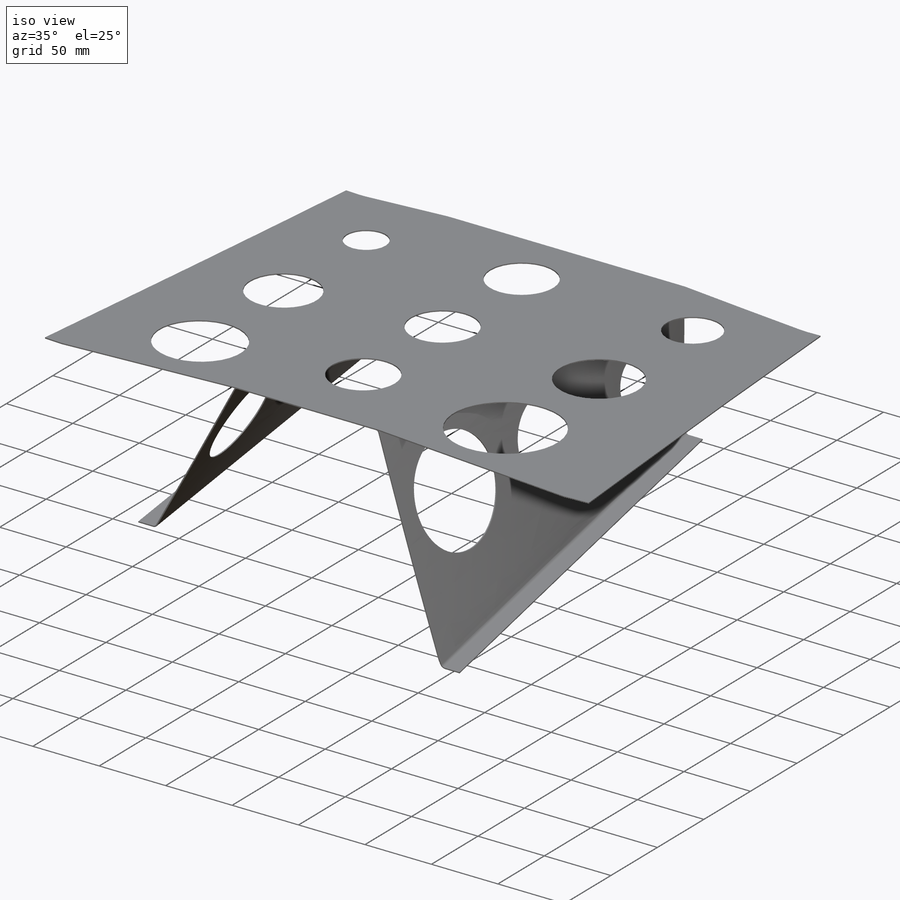
[diagram: iso view]
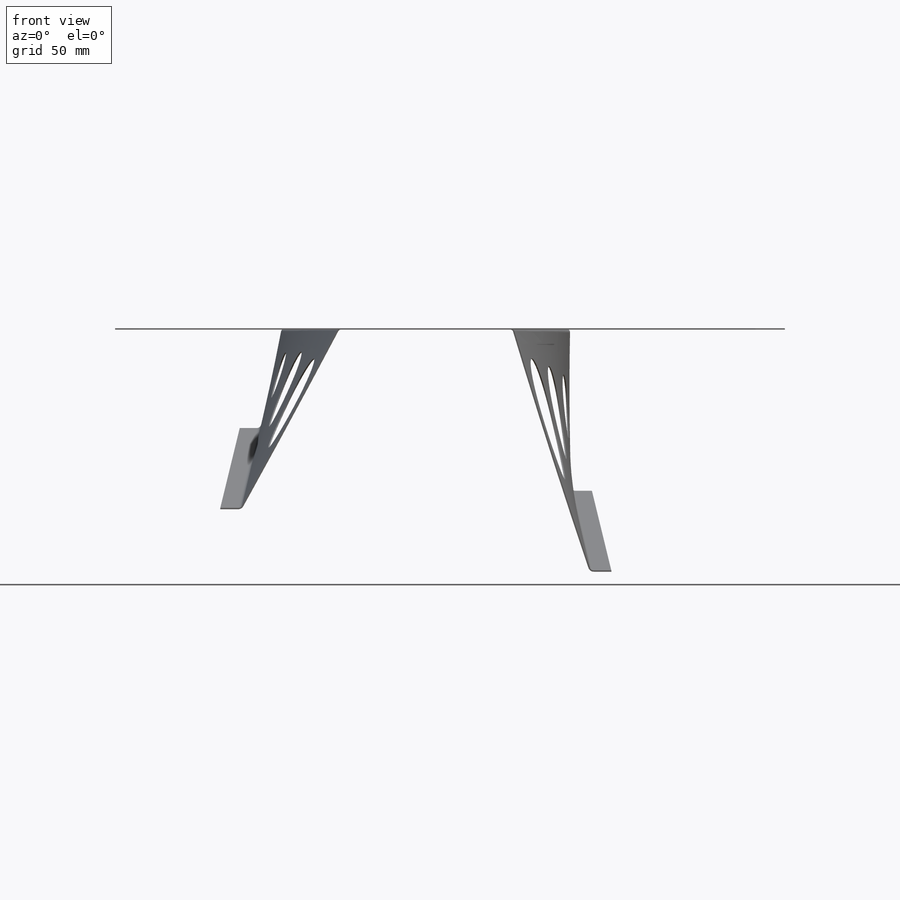
[diagram: front view]
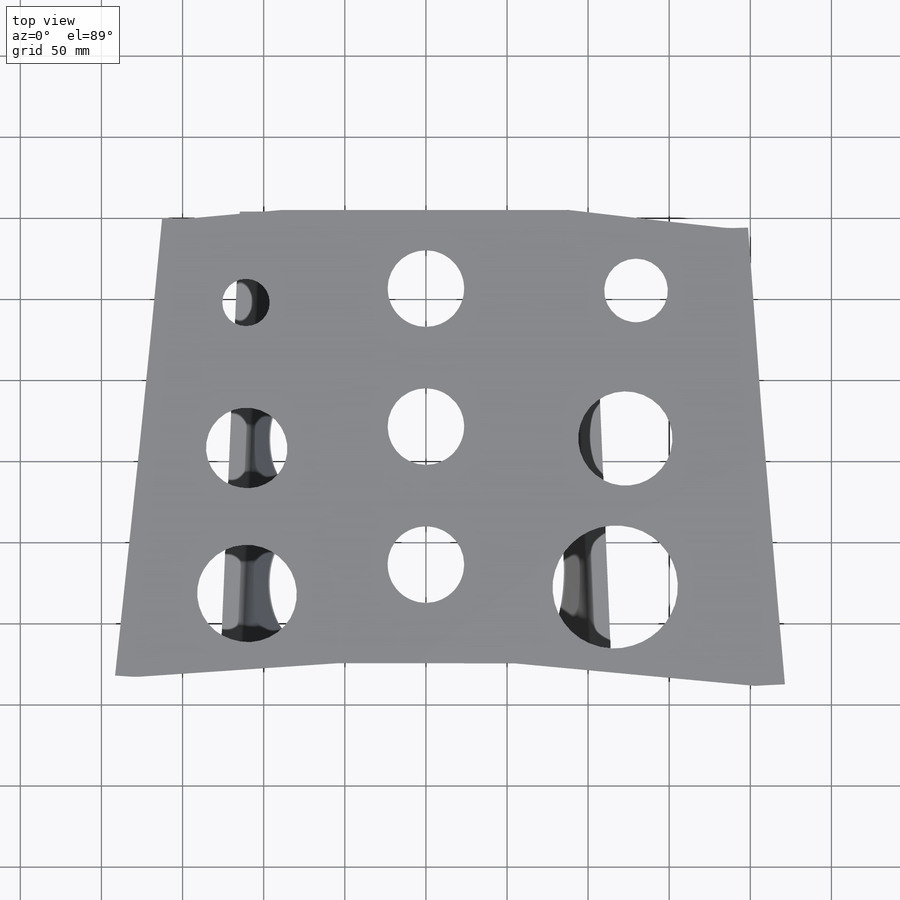
[diagram: top view]
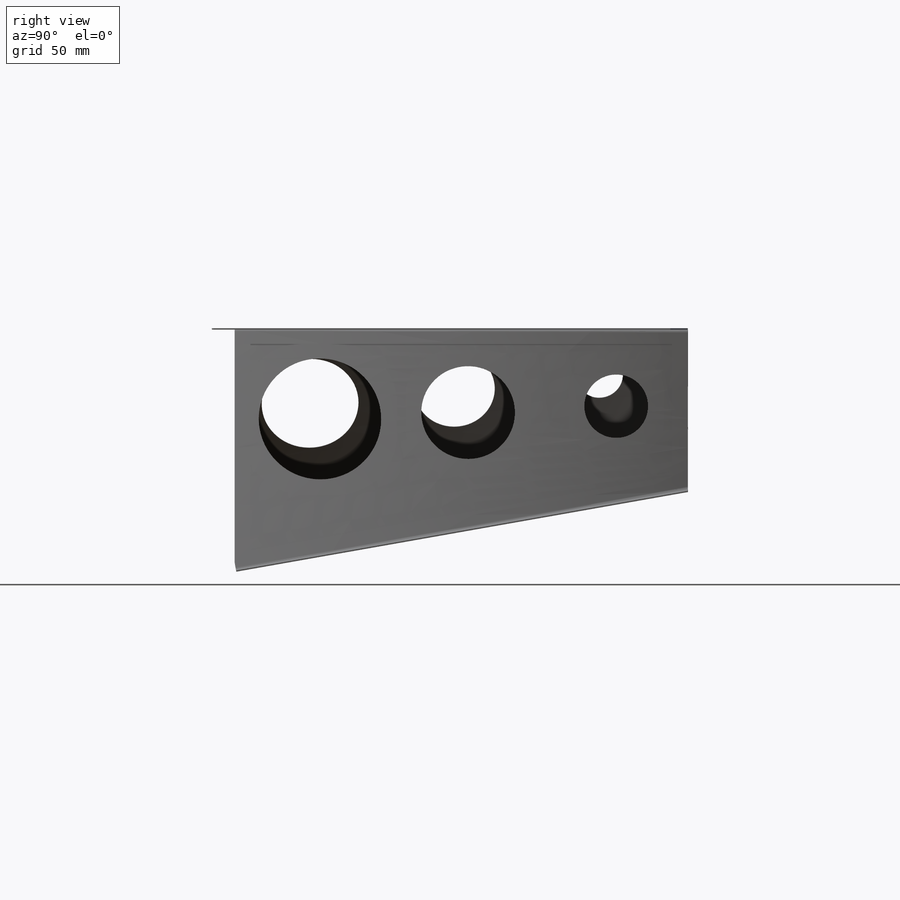
[diagram: right view]
SOLIDWORKS PART (.sldprt)
format: sldprt  version: not decoded by parser v0  size: 623,616 bytes
history: native  units: mm
features: extrude x11, sketch x8, plane x7, fillet x5, cut_extrude x3, material x1 (+11 scaffold rows collapsed)
feature tree (46):
  scaffold x11  (default folders/planes/origin — collapsed)
  material  "CRS Soft"
  sketch  "Sketch1"  dims[D1=101.6mm D2=177.8mm D3=304.8mm]
  sketch  "Sketch3"  dims[c1.D1=100.0mm c2.D1=10.0deg c2.D2=127.0mm]
  plane  "Plane1"
  plane  "Plane2"  Offset=38.1mm
  plane  "Plane3"  Offset=127mm
  plane  "Plane4"  Offset=152.4mm
  sketch  "Sketch4"  dims[c1.D1=12.7mm c1.D2=127.0mm c1.D3=127.0mm c2.D2=88.9mm c2.D3=127.0mm c2.D4=101.6mm c2.D5=139.7mm]
  sketch  "Sketch5"  dims[D1=12.7mm D2=101.6mm D3=114.3mm]
  fillet  "Fillet4"  Radius=2.54mm
  plane  "Plane5"
  sketch  "Sketch7"
  cut_extrude  "Cut-Extrude1"  Depth=35.56mm
  plane  "Plane6"
  sketch  "Sketch8"
  cut_extrude  "Cut-Extrude2"  Depth=35.56mm
  sketch  "Sketch9"
  cut_extrude  "Cut-Extrude3"  Depth=35.56mm EPAISSEUR=0.000813
  extrude  "PRECIS"  Depth=5.08mm LENGHT_ELT=5.08mm ERR_CHORD=0.169333mm
  extrude  "SENS_MAT"  Depth=0mm EPAISSEUR=0mm MATERIAL=0mm
  extrude  "PRECIS"  Depth=0mm LENGHT_ELT=0mm ERR_CHORD=0mm
  fillet  "LGP_AI_BLOCKED_ENTITY_1"  [1 undecoded]
  extrude  "TYPE_ENT"  [1 undecoded]
  extrude  "TYPE_BLOCK"  [1 undecoded]
  extrude  "TYPE_POINT_BLOCK"  [1 undecoded]
  extrude  "ID_SKETCH_ENT"  [1 undecoded]
  extrude  "TYPE_ENT"  [1 undecoded]
  extrude  "TYPE_BLOCK"  [1 undecoded]
  extrude  "TYPE_POINT_BLOCK"  Depth=0 PT_CLICK=0
  extrude  "ID_SKETCH_ENT"  [1 undecoded]
  plane  "Plane Blank1"
  fillet  "LGP_AI_FLAN_PLANE"  Radius=0mm TYPE=0mm
  sketch  "Sketch Blank1"
  fillet  "LGP_AI_FLAN_SKETCH"  Radius=0mm TYPE=0mm
  fillet  "LGP_AI_FLAN_EXTRUDE"  Radius=0mm TYPE=0mm
decode coverage: 15 of 27 modeling features carry decoded parameters
note: 8 parameter values undecoded
summary: no parameter record found for 8 features
note: suppression state not decoded; provenance and decode notes live in map.json
